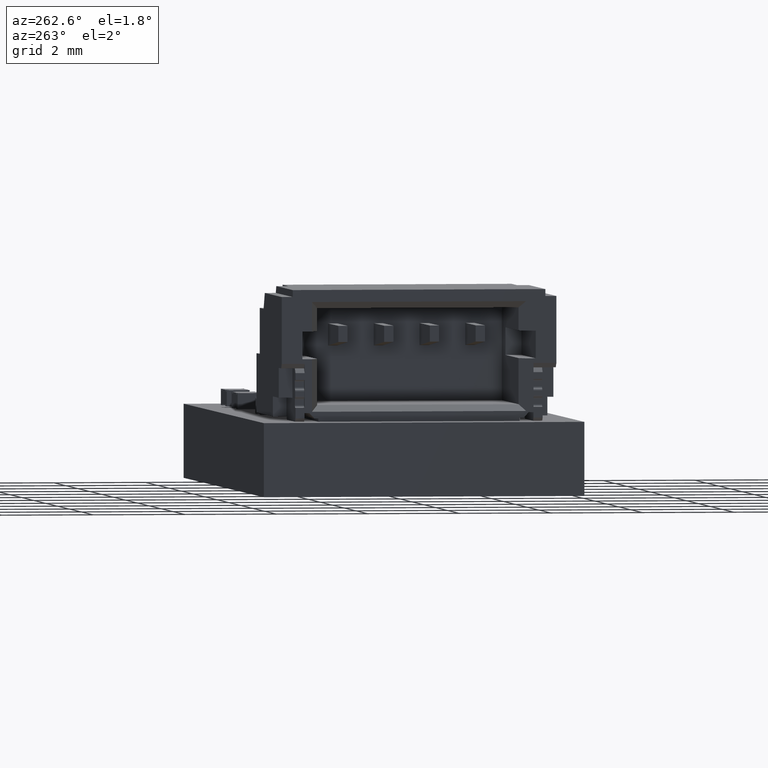
[diagram: clean part render]
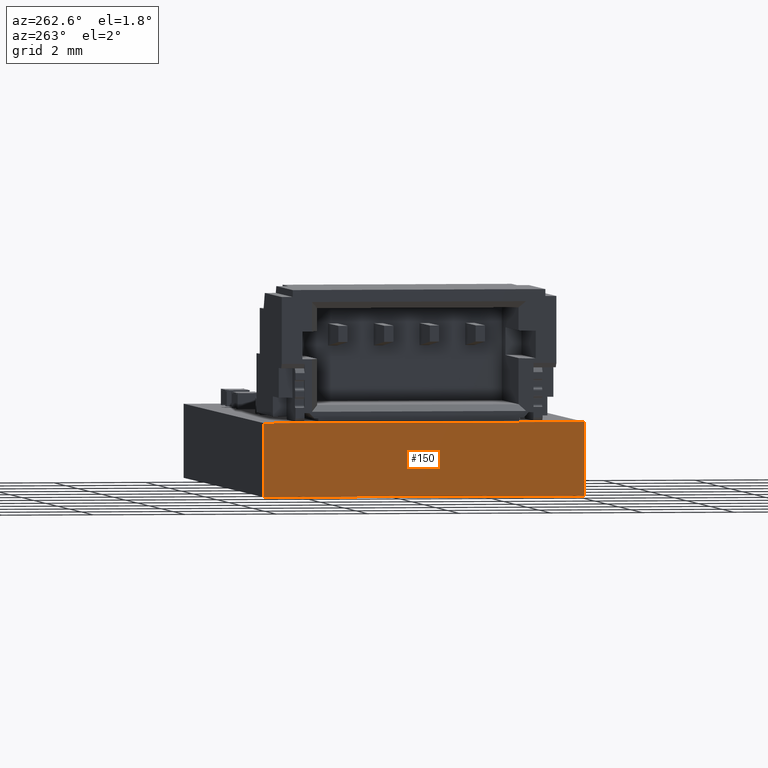
[diagram: same view with one face highlighted and labeled with its STEP entity id]
A machine part, auxiliary view. The second image highlights one B-rep face of the part: STEP entity #150.
In plain terms, the highlighted planar face has unit normal (1, 0, 0).
Its self-contained STEP definition (entity closure, byte-faithful):
#94 = VERTEX_POINT('',#95);
#95 = CARTESIAN_POINT('',(0.,-0.25,0.803));
#101 = EDGE_CURVE('',#102,#94,#104,.T.);
#102 = VERTEX_POINT('',#103);
#103 = CARTESIAN_POINT('',(0.,-0.25,-0.803));
#104 = LINE('',#105,#106);
#105 = CARTESIAN_POINT('',(0.,-0.25,-0.803));
#106 = VECTOR('',#107,1.);
#107 = DIRECTION('',(0.,0.,1.));
#150 = ADVANCED_FACE('',(#151),#176,.F.);
#151 = FACE_BOUND('',#152,.F.);
#152 = EDGE_LOOP('',(#153,#154,#162,#170));
#153 = ORIENTED_EDGE('',*,*,#101,.T.);
#154 = ORIENTED_EDGE('',*,*,#155,.T.);
#155 = EDGE_CURVE('',#94,#156,#158,.T.);
#156 = VERTEX_POINT('',#157);
#157 = CARTESIAN_POINT('',(0.,-7.25,0.803));
#158 = LINE('',#159,#160);
#159 = CARTESIAN_POINT('',(0.,-0.25,0.803));
#160 = VECTOR('',#161,1.);
#161 = DIRECTION('',(0.,-1.,0.));
#162 = ORIENTED_EDGE('',*,*,#163,.F.);
#163 = EDGE_CURVE('',#164,#156,#166,.T.);
#164 = VERTEX_POINT('',#165);
#165 = CARTESIAN_POINT('',(0.,-7.25,-0.803));
#166 = LINE('',#167,#168);
#167 = CARTESIAN_POINT('',(0.,-7.25,-0.803));
#168 = VECTOR('',#169,1.);
#169 = DIRECTION('',(0.,0.,1.));
#170 = ORIENTED_EDGE('',*,*,#171,.F.);
#171 = EDGE_CURVE('',#102,#164,#172,.T.);
#172 = LINE('',#173,#174);
#173 = CARTESIAN_POINT('',(0.,-0.25,-0.803));
#174 = VECTOR('',#175,1.);
#175 = DIRECTION('',(0.,-1.,0.));
#176 = PLANE('',#177);
#177 = AXIS2_PLACEMENT_3D('',#178,#179,#180);
#178 = CARTESIAN_POINT('',(0.,-0.25,-0.803));
#179 = DIRECTION('',(1.,0.,-0.));
#180 = DIRECTION('',(0.,-1.,0.));